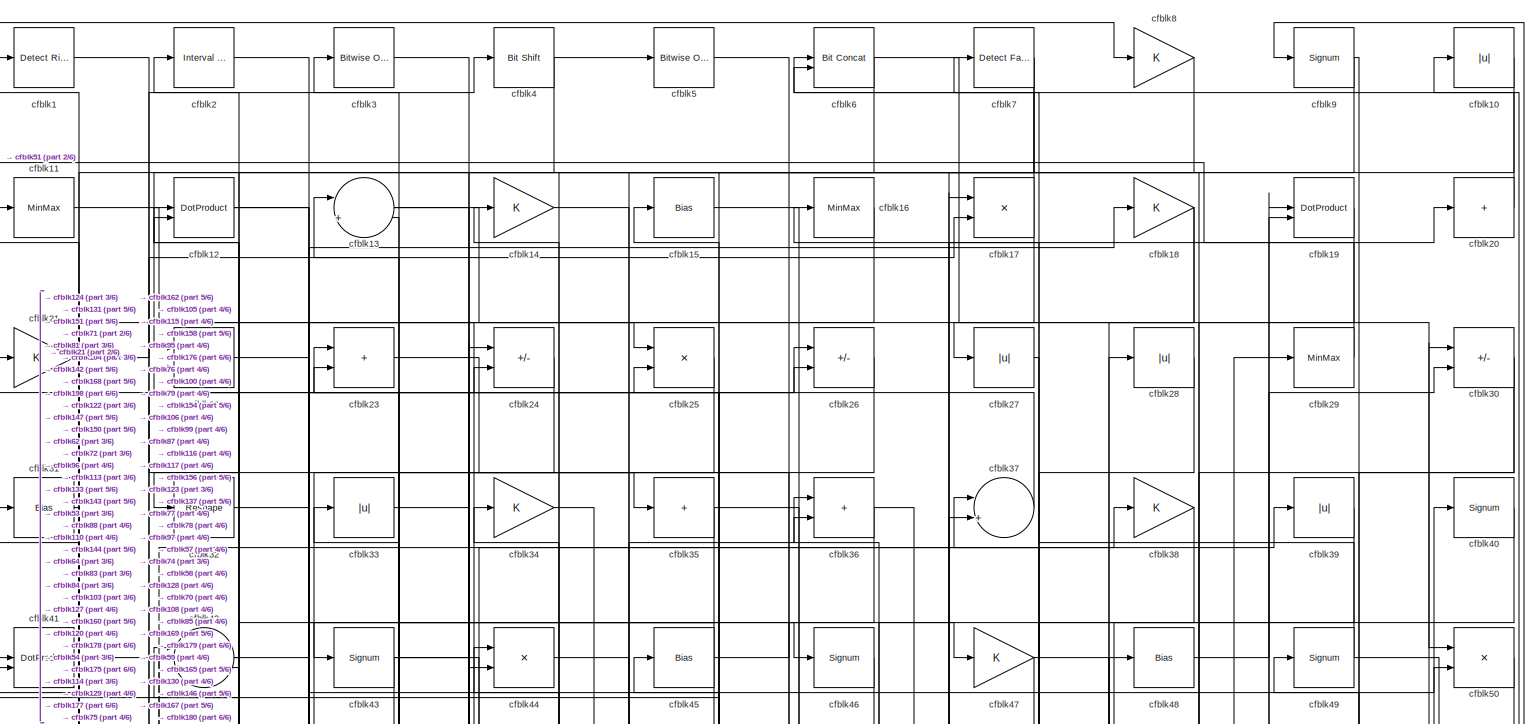
[diagram: root canvas - part 1/6, full width, top band]
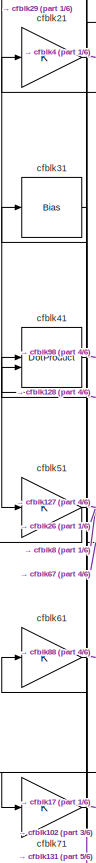
[diagram: root canvas - part 2/6, top left region]
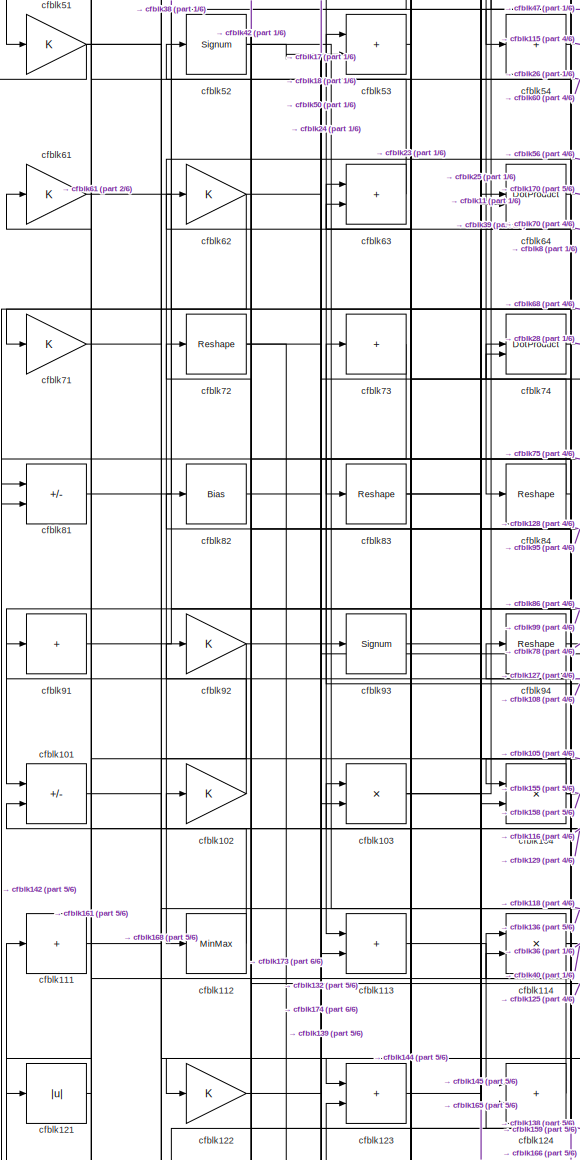
[diagram: root canvas - part 3/6, middle left region]
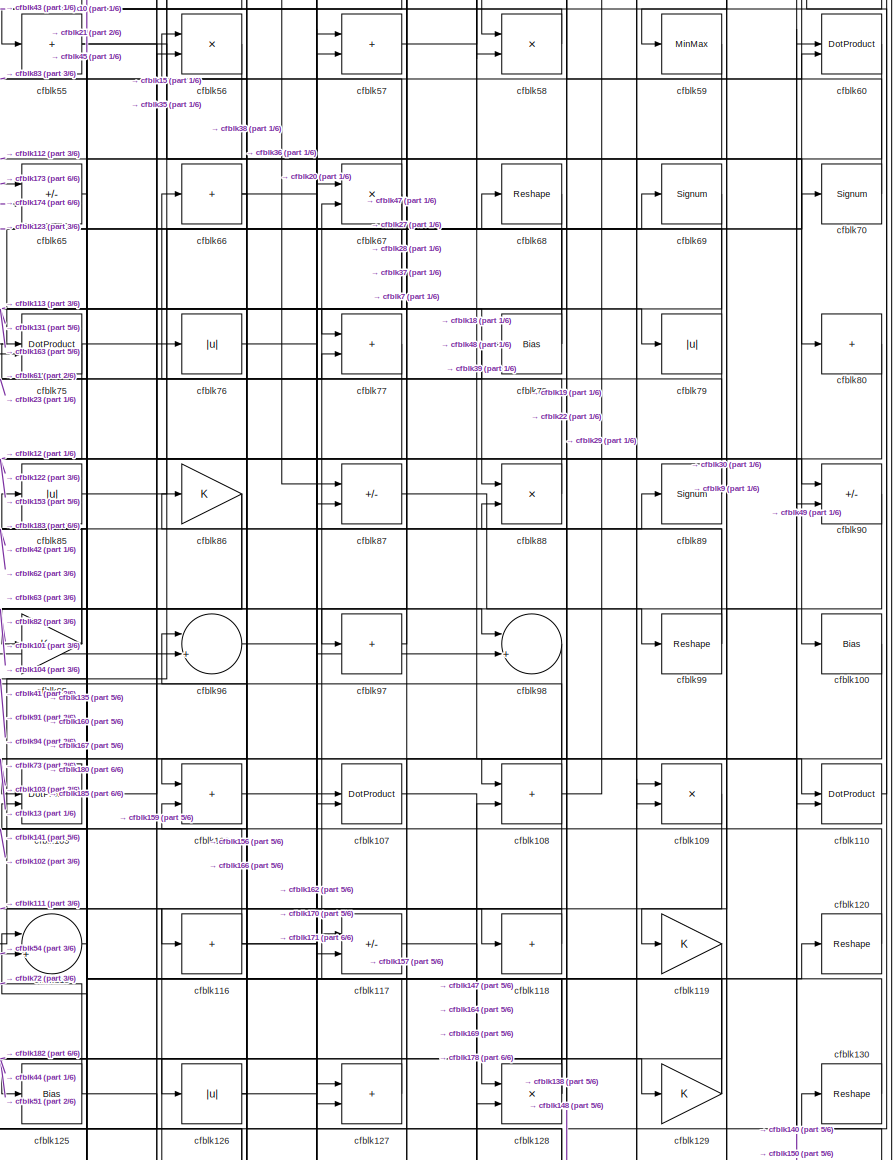
[diagram: root canvas - part 4/6, middle right region]
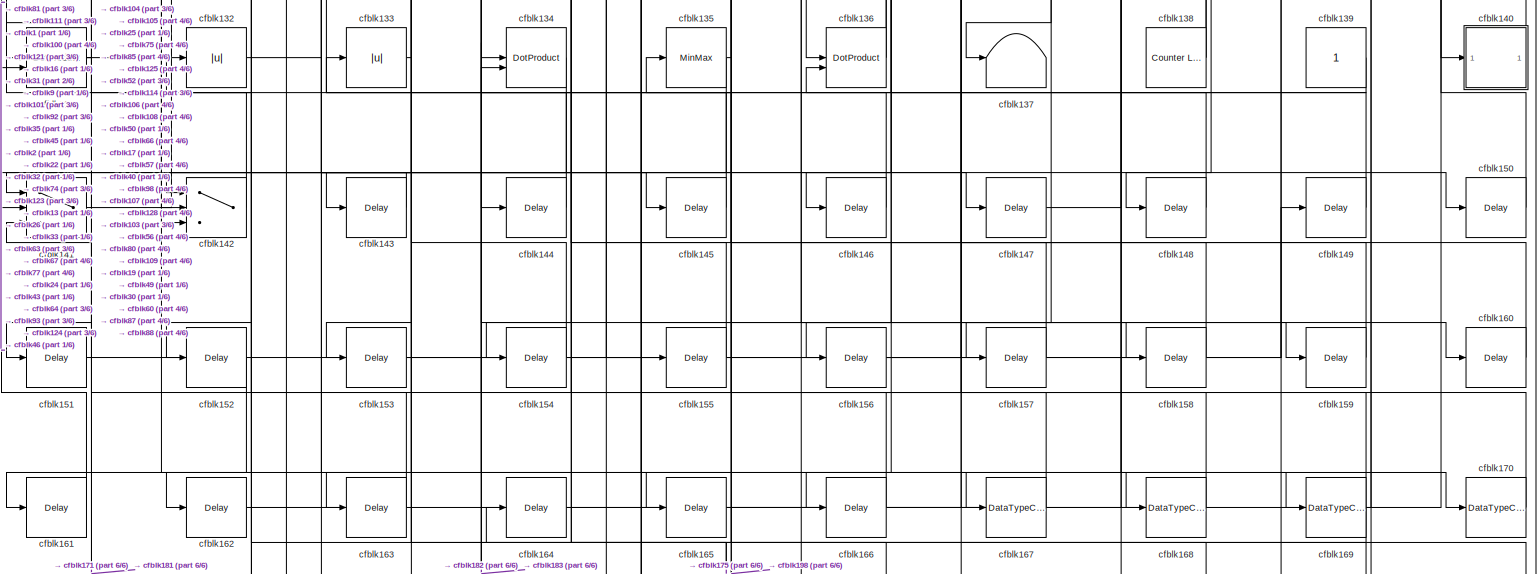
[diagram: root canvas - part 5/6, full width, bottom band]
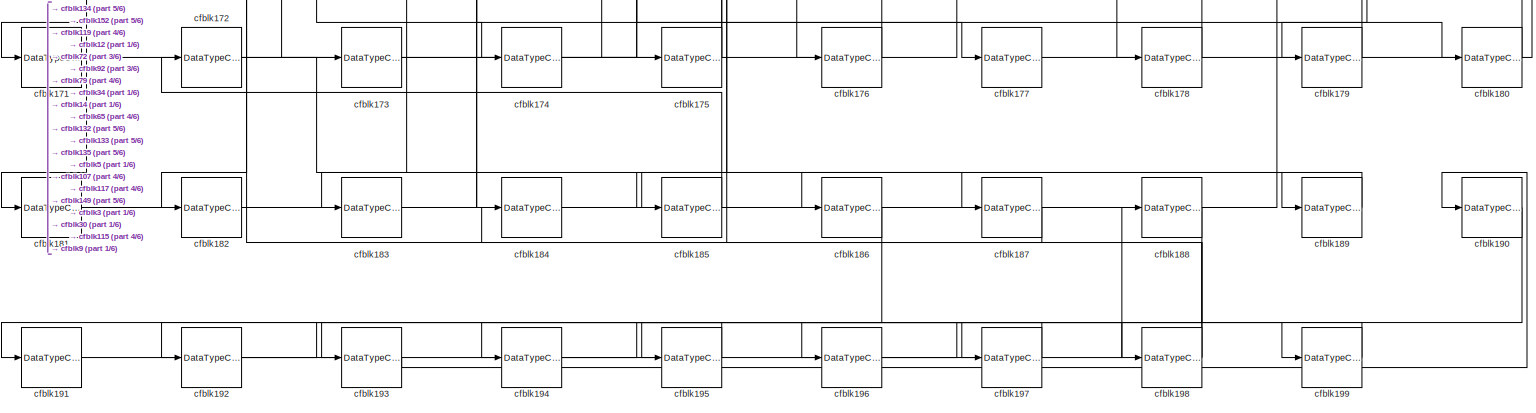
[diagram: root canvas - part 6/6, full width, bottom band]
MODEL slx_1064f1e2cec7
KIND model
CONFIG AbsTol = auto
CONFIG EnableMultiTasking = off
CONFIG FixedStep = auto
CONFIG MaxStep = auto
CONFIG MinStep = auto
CONFIG RelTol = 1e-3
CONFIG SampleTimeConstraint = Unconstrained
CONFIG SolverName = VariableStepAuto
CONFIG StartTime = 0.0
CONFIG StopTime = 10.0
BLOCK [Reference] cfblk1  REF=hdlsllib/Logic and Bit
Operations/Detect Rise
Positive
  SourceBlock = hdlsllib/Logic and Bit\nOperations/Detect Rise\nPositive
  SourceType = Detect Rise Positive
BLOCK [Abs] cfblk10
  SaturateOnIntegerOverflow = off
BLOCK [Bias] cfblk100
  Bias = 0.0
  SaturateOnIntegerOverflow = off
BLOCK [Sum] cfblk101
  IconShape = rectangular
  Inputs = +-
BLOCK [Gain] cfblk102
BLOCK [Product] cfblk103
  Inputs = */
  RndMeth = Zero
  SaturateOnIntegerOverflow = on
BLOCK [Product] cfblk104
  Inputs = */
  RndMeth = Zero
  SaturateOnIntegerOverflow = on
BLOCK [DotProduct] cfblk105
  OutDataTypeStr = Inherit: Inherit via internal rule
BLOCK [Sum] cfblk106
  IconShape = rectangular
BLOCK [DotProduct] cfblk107
  OutDataTypeStr = Inherit: Inherit via internal rule
BLOCK [Sum] cfblk108
  IconShape = rectangular
BLOCK [Product] cfblk109
  Inputs = */
  RndMeth = Zero
  SaturateOnIntegerOverflow = on
BLOCK [MinMax] cfblk11
BLOCK [DotProduct] cfblk110
  OutDataTypeStr = Inherit: Inherit via internal rule
BLOCK [Sum] cfblk111
  IconShape = rectangular
  Inputs = +
BLOCK [MinMax] cfblk112
BLOCK [Sum] cfblk113
  IconShape = rectangular
BLOCK [Product] cfblk114
  Inputs = */
  RndMeth = Zero
  SaturateOnIntegerOverflow = on
BLOCK [Sum] cfblk115
  Inputs = |++
BLOCK [Sum] cfblk116
  IconShape = rectangular
  Inputs = +
BLOCK [Sum] cfblk117
  IconShape = rectangular
  Inputs = +-
BLOCK [Sum] cfblk118
  IconShape = rectangular
  Inputs = +
BLOCK [Gain] cfblk119
BLOCK [DotProduct] cfblk12
  OutDataTypeStr = Inherit: Inherit via internal rule
BLOCK [Reshape] cfblk120
BLOCK [Abs] cfblk121
  SaturateOnIntegerOverflow = off
BLOCK [Gain] cfblk122
BLOCK [Sum] cfblk123
  IconShape = rectangular
BLOCK [Sum] cfblk124
  IconShape = rectangular
BLOCK [Bias] cfblk125
  Bias = 0.0
  SaturateOnIntegerOverflow = off
BLOCK [Abs] cfblk126
  SaturateOnIntegerOverflow = off
BLOCK [Sum] cfblk127
  IconShape = rectangular
BLOCK [Product] cfblk128
  Inputs = */
  RndMeth = Zero
  SaturateOnIntegerOverflow = on
BLOCK [Gain] cfblk129
BLOCK [Sum] cfblk13
  Inputs = |++
BLOCK [Reshape] cfblk130
BLOCK [DotProduct] cfblk131
  OutDataTypeStr = Inherit: Inherit via internal rule
BLOCK [Abs] cfblk132
  SaturateOnIntegerOverflow = off
BLOCK [Abs] cfblk133
  SaturateOnIntegerOverflow = off
BLOCK [DotProduct] cfblk134
  OutDataTypeStr = Inherit: Inherit via internal rule
BLOCK [MinMax] cfblk135
BLOCK [DotProduct] cfblk136
  OutDataTypeStr = Inherit: Inherit via internal rule
BLOCK [Terminator] cfblk137
BLOCK [Reference] cfblk138  REF=hdlsllib/Sources/Counter
Limited
  SourceBlock = hdlsllib/Sources/Counter\nLimited
  SourceType = Counter Limited
BLOCK [Constant] cfblk139
  SampleTime = -1
BLOCK [Gain] cfblk14
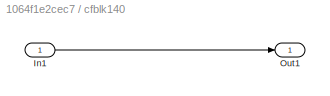
BLOCK [SubSystem] cfblk140
  LibrarySourceBlock = hdlsllib/Ports &\nSubsystems/Subsystem
BLOCK [Inport] cfblk140/In1
BLOCK [Outport] cfblk140/Out1
BLOCK [Switch] cfblk141
  InputSameDT = off
  SaturateOnIntegerOverflow = off
BLOCK [Switch] cfblk142
  InputSameDT = off
  SaturateOnIntegerOverflow = off
BLOCK [Delay] cfblk143
  InputPortMap = u0
  SampleTime = 1
BLOCK [Delay] cfblk144
  InputPortMap = u0
  SampleTime = 1
BLOCK [Delay] cfblk145
  InputPortMap = u0
  SampleTime = 1
BLOCK [Delay] cfblk146
  InputPortMap = u0
  SampleTime = 1
BLOCK [Delay] cfblk147
  InputPortMap = u0
  SampleTime = 1
BLOCK [Delay] cfblk148
  InputPortMap = u0
  SampleTime = 1
BLOCK [Delay] cfblk149
  InputPortMap = u0
  SampleTime = 1
BLOCK [Bias] cfblk15
  Bias = 0.0
  SaturateOnIntegerOverflow = off
BLOCK [Delay] cfblk150
  InputPortMap = u0
  SampleTime = 1
BLOCK [Delay] cfblk151
  InputPortMap = u0
  SampleTime = 1
BLOCK [Delay] cfblk152
  InputPortMap = u0
  SampleTime = 1
BLOCK [Delay] cfblk153
  InputPortMap = u0
  SampleTime = 1
BLOCK [Delay] cfblk154
  InputPortMap = u0
  SampleTime = 1
BLOCK [Delay] cfblk155
  InputPortMap = u0
  SampleTime = 1
BLOCK [Delay] cfblk156
  InputPortMap = u0
  SampleTime = 1
BLOCK [Delay] cfblk157
  InputPortMap = u0
  SampleTime = 1
BLOCK [Delay] cfblk158
  InputPortMap = u0
  SampleTime = 1
BLOCK [Delay] cfblk159
  InputPortMap = u0
  SampleTime = 1
BLOCK [MinMax] cfblk16
BLOCK [Delay] cfblk160
  InputPortMap = u0
  SampleTime = 1
BLOCK [Delay] cfblk161
  InputPortMap = u0
  SampleTime = 1
BLOCK [Delay] cfblk162
  InputPortMap = u0
  SampleTime = 1
BLOCK [Delay] cfblk163
  InputPortMap = u0
  SampleTime = 1
BLOCK [Delay] cfblk164
  InputPortMap = u0
  SampleTime = 1
BLOCK [Delay] cfblk165
  InputPortMap = u0
  SampleTime = 1
BLOCK [Delay] cfblk166
  InputPortMap = u0
  SampleTime = 1
BLOCK [DataTypeConversion] cfblk167
  OutDataTypeStr = uint8
  RndMeth = Floor
  SaturateOnIntegerOverflow = off
BLOCK [DataTypeConversion] cfblk168
  OutDataTypeStr = uint8
  RndMeth = Floor
  SaturateOnIntegerOverflow = off
BLOCK [DataTypeConversion] cfblk169
  RndMeth = Floor
  SaturateOnIntegerOverflow = off
BLOCK [Product] cfblk17
  Inputs = */
  RndMeth = Zero
  SaturateOnIntegerOverflow = on
BLOCK [DataTypeConversion] cfblk170
  OutDataTypeStr = uint8
  RndMeth = Floor
  SaturateOnIntegerOverflow = off
BLOCK [DataTypeConversion] cfblk171
  OutDataTypeStr = uint8
  RndMeth = Floor
  SaturateOnIntegerOverflow = off
BLOCK [DataTypeConversion] cfblk172
  RndMeth = Floor
  SaturateOnIntegerOverflow = off
BLOCK [DataTypeConversion] cfblk173
  OutDataTypeStr = uint8
  RndMeth = Floor
  SaturateOnIntegerOverflow = off
BLOCK [DataTypeConversion] cfblk174
  OutDataTypeStr = uint8
  RndMeth = Floor
  SaturateOnIntegerOverflow = off
BLOCK [DataTypeConversion] cfblk175
  RndMeth = Floor
  SaturateOnIntegerOverflow = off
BLOCK [DataTypeConversion] cfblk176
  OutDataTypeStr = uint8
  RndMeth = Floor
  SaturateOnIntegerOverflow = off
BLOCK [DataTypeConversion] cfblk177
  OutDataTypeStr = uint8
  RndMeth = Floor
  SaturateOnIntegerOverflow = off
BLOCK [DataTypeConversion] cfblk178
  OutDataTypeStr = uint8
  RndMeth = Floor
  SaturateOnIntegerOverflow = off
BLOCK [DataTypeConversion] cfblk179
  OutDataTypeStr = boolean
  RndMeth = Floor
  SaturateOnIntegerOverflow = off
BLOCK [Gain] cfblk18
BLOCK [DataTypeConversion] cfblk180
  OutDataTypeStr = uint8
  RndMeth = Floor
  SaturateOnIntegerOverflow = off
BLOCK [DataTypeConversion] cfblk181
  OutDataTypeStr = uint8
  RndMeth = Floor
  SaturateOnIntegerOverflow = off
BLOCK [DataTypeConversion] cfblk182
  OutDataTypeStr = uint8
  RndMeth = Floor
  SaturateOnIntegerOverflow = off
BLOCK [DataTypeConversion] cfblk183
  OutDataTypeStr = uint8
  RndMeth = Floor
  SaturateOnIntegerOverflow = off
BLOCK [DataTypeConversion] cfblk184
  RndMeth = Floor
  SaturateOnIntegerOverflow = off
BLOCK [DataTypeConversion] cfblk185
  OutDataTypeStr = uint8
  RndMeth = Floor
  SaturateOnIntegerOverflow = off
BLOCK [DataTypeConversion] cfblk186
  RndMeth = Floor
  SaturateOnIntegerOverflow = off
BLOCK [DataTypeConversion] cfblk187
  OutDataTypeStr = uint8
  RndMeth = Floor
  SaturateOnIntegerOverflow = off
BLOCK [DataTypeConversion] cfblk188
  RndMeth = Floor
  SaturateOnIntegerOverflow = off
BLOCK [DataTypeConversion] cfblk189
  OutDataTypeStr = uint8
  RndMeth = Floor
  SaturateOnIntegerOverflow = off
BLOCK [DotProduct] cfblk19
  OutDataTypeStr = Inherit: Inherit via internal rule
BLOCK [DataTypeConversion] cfblk190
  RndMeth = Floor
  SaturateOnIntegerOverflow = off
BLOCK [DataTypeConversion] cfblk191
  OutDataTypeStr = uint8
  RndMeth = Floor
  SaturateOnIntegerOverflow = off
BLOCK [DataTypeConversion] cfblk192
  RndMeth = Floor
  SaturateOnIntegerOverflow = off
BLOCK [DataTypeConversion] cfblk193
  OutDataTypeStr = uint8
  RndMeth = Floor
  SaturateOnIntegerOverflow = off
BLOCK [DataTypeConversion] cfblk194
  RndMeth = Floor
  SaturateOnIntegerOverflow = off
BLOCK [DataTypeConversion] cfblk195
  OutDataTypeStr = uint8
  RndMeth = Floor
  SaturateOnIntegerOverflow = off
BLOCK [DataTypeConversion] cfblk196
  RndMeth = Floor
  SaturateOnIntegerOverflow = off
BLOCK [DataTypeConversion] cfblk197
  OutDataTypeStr = uint8
  RndMeth = Floor
  SaturateOnIntegerOverflow = off
BLOCK [DataTypeConversion] cfblk198
  RndMeth = Floor
  SaturateOnIntegerOverflow = off
BLOCK [DataTypeConversion] cfblk199
  OutDataTypeStr = uint8
  RndMeth = Floor
  SaturateOnIntegerOverflow = off
BLOCK [Reference] cfblk2  REF=hdlsllib/Logic and Bit
Operations/Interval Test
  SourceBlock = hdlsllib/Logic and Bit\nOperations/Interval Test
  SourceType = Interval Test
BLOCK [Sum] cfblk20
  IconShape = rectangular
  Inputs = +
BLOCK [Gain] cfblk21
BLOCK [Sum] cfblk22
  IconShape = rectangular
BLOCK [Sum] cfblk23
  IconShape = rectangular
BLOCK [Sum] cfblk24
  IconShape = rectangular
  Inputs = +-
BLOCK [Product] cfblk25
  Inputs = */
  RndMeth = Zero
  SaturateOnIntegerOverflow = on
BLOCK [Sum] cfblk26
  IconShape = rectangular
  Inputs = +-
BLOCK [Abs] cfblk27
  SaturateOnIntegerOverflow = off
BLOCK [Abs] cfblk28
  SaturateOnIntegerOverflow = off
BLOCK [MinMax] cfblk29
BLOCK [Reference] cfblk3  REF=simulink/Logic and Bit
Operations/Bitwise
Operator
  LibrarySourceBlock = hdlsllib/Logic and Bit\nOperations/Bitwise\nOperator
  SourceBlock = simulink/Logic and Bit\nOperations/Bitwise\nOperator
  SourceType = Bitwise Operator
BLOCK [Sum] cfblk30
  IconShape = rectangular
  Inputs = +-
BLOCK [Bias] cfblk31
  Bias = 0.0
  SaturateOnIntegerOverflow = off
BLOCK [Reshape] cfblk32
BLOCK [Abs] cfblk33
  SaturateOnIntegerOverflow = off
BLOCK [Gain] cfblk34
BLOCK [Sum] cfblk35
  IconShape = rectangular
  Inputs = +
BLOCK [Sum] cfblk36
  IconShape = rectangular
BLOCK [Sum] cfblk37
  Inputs = |++
BLOCK [Gain] cfblk38
BLOCK [Abs] cfblk39
  SaturateOnIntegerOverflow = off
BLOCK [Reference] cfblk4  REF=hdlsllib/Logic and Bit
Operations/Bit Shift
  SourceBlock = hdlsllib/Logic and Bit\nOperations/Bit Shift
  SourceType = Bit Shift
BLOCK [Signum] cfblk40
BLOCK [DotProduct] cfblk41
  OutDataTypeStr = Inherit: Inherit via internal rule
BLOCK [Sum] cfblk42
  Inputs = |++
BLOCK [Signum] cfblk43
BLOCK [Product] cfblk44
  Inputs = */
  RndMeth = Zero
  SaturateOnIntegerOverflow = on
BLOCK [Bias] cfblk45
  Bias = 0.0
  SaturateOnIntegerOverflow = off
BLOCK [Signum] cfblk46
BLOCK [Gain] cfblk47
BLOCK [Bias] cfblk48
  Bias = 0.0
  SaturateOnIntegerOverflow = off
BLOCK [Signum] cfblk49
BLOCK [Reference] cfblk5  REF=simulink/Logic and Bit
Operations/Bitwise
Operator
  LibrarySourceBlock = hdlsllib/Logic and Bit\nOperations/Bitwise\nOperator
  SourceBlock = simulink/Logic and Bit\nOperations/Bitwise\nOperator
  SourceType = Bitwise Operator
BLOCK [Product] cfblk50
  Inputs = */
  RndMeth = Zero
  SaturateOnIntegerOverflow = on
BLOCK [Gain] cfblk51
BLOCK [Signum] cfblk52
BLOCK [Sum] cfblk53
  IconShape = rectangular
BLOCK [Sum] cfblk54
  IconShape = rectangular
  Inputs = +
BLOCK [Sum] cfblk55
  IconShape = rectangular
  Inputs = +
BLOCK [Product] cfblk56
  Inputs = */
  RndMeth = Zero
  SaturateOnIntegerOverflow = on
BLOCK [Sum] cfblk57
  IconShape = rectangular
BLOCK [Product] cfblk58
  Inputs = */
  RndMeth = Zero
  SaturateOnIntegerOverflow = on
BLOCK [MinMax] cfblk59
BLOCK [Reference] cfblk6  REF=hdlsllib/Logic and Bit
Operations/Bit Concat
  SourceBlock = hdlsllib/Logic and Bit\nOperations/Bit Concat
  SourceType = Bit Concat
BLOCK [DotProduct] cfblk60
  OutDataTypeStr = Inherit: Inherit via internal rule
BLOCK [Gain] cfblk61
BLOCK [Gain] cfblk62
BLOCK [Sum] cfblk63
  IconShape = rectangular
BLOCK [DotProduct] cfblk64
  OutDataTypeStr = Inherit: Inherit via internal rule
BLOCK [Sum] cfblk65
  IconShape = rectangular
  Inputs = +-
BLOCK [Sum] cfblk66
  IconShape = rectangular
  Inputs = +
BLOCK [Product] cfblk67
  Inputs = */
  RndMeth = Zero
  SaturateOnIntegerOverflow = on
BLOCK [Reshape] cfblk68
BLOCK [Signum] cfblk69
BLOCK [Reference] cfblk7  REF=hdlsllib/Logic and Bit
Operations/Detect Fall
Negative
  SourceBlock = hdlsllib/Logic and Bit\nOperations/Detect Fall\nNegative
  SourceType = Detect Fall Negative
BLOCK [Signum] cfblk70
BLOCK [Gain] cfblk71
BLOCK [Reshape] cfblk72
BLOCK [Sum] cfblk73
  IconShape = rectangular
  Inputs = +
BLOCK [DotProduct] cfblk74
  OutDataTypeStr = Inherit: Inherit via internal rule
BLOCK [DotProduct] cfblk75
  OutDataTypeStr = Inherit: Inherit via internal rule
BLOCK [Abs] cfblk76
  SaturateOnIntegerOverflow = off
BLOCK [Sum] cfblk77
  IconShape = rectangular
BLOCK [Bias] cfblk78
  Bias = 0.0
  SaturateOnIntegerOverflow = off
BLOCK [Abs] cfblk79
  SaturateOnIntegerOverflow = off
BLOCK [Gain] cfblk8
BLOCK [Sum] cfblk80
  IconShape = rectangular
  Inputs = +
BLOCK [Sum] cfblk81
  IconShape = rectangular
  Inputs = +-
BLOCK [Bias] cfblk82
  Bias = 0.0
  SaturateOnIntegerOverflow = off
BLOCK [Reshape] cfblk83
BLOCK [Reshape] cfblk84
BLOCK [Abs] cfblk85
  SaturateOnIntegerOverflow = off
BLOCK [Gain] cfblk86
BLOCK [Sum] cfblk87
  IconShape = rectangular
  Inputs = +-
BLOCK [Product] cfblk88
  Inputs = */
  RndMeth = Zero
  SaturateOnIntegerOverflow = on
BLOCK [Signum] cfblk89
BLOCK [Signum] cfblk9
BLOCK [Sum] cfblk90
  IconShape = rectangular
  Inputs = +-
BLOCK [Sum] cfblk91
  IconShape = rectangular
  Inputs = +
BLOCK [Gain] cfblk92
BLOCK [Signum] cfblk93
BLOCK [Reshape] cfblk94
BLOCK [Gain] cfblk95
BLOCK [Sum] cfblk96
  Inputs = |++
BLOCK [Sum] cfblk97
  IconShape = rectangular
  Inputs = +
BLOCK [Sum] cfblk98
  Inputs = |++
BLOCK [Reshape] cfblk99
LINE cfblk100:1 -> cfblk141:1
LINE cfblk101:1 -> cfblk168:1
LINE cfblk102:1 -> cfblk61:1
NET cfblk103:1 -> cfblk105:1, cfblk39:1
NET cfblk104:1 -> cfblk155:1, cfblk158:1, cfblk42:2
NET cfblk105:1 -> cfblk45:1, cfblk77:2
LINE cfblk106:1 -> cfblk57:1
LINE cfblk107:1 -> cfblk169:1
NET cfblk108:1 -> cfblk166:1, cfblk29:1, cfblk73:1
LINE cfblk109:1 -> cfblk116:1
LINE cfblk10:1 -> cfblk95:1
LINE cfblk110:1 -> cfblk10:1
LINE cfblk111:1 -> cfblk118:1
LINE cfblk112:1 -> cfblk91:1
LINE cfblk113:1 -> cfblk124:1
NET cfblk114:1 -> cfblk36:2, cfblk40:1
LINE cfblk115:1 -> cfblk15:1
NET cfblk116:1 -> cfblk101:2, cfblk37:2, cfblk69:1
LINE cfblk117:1 -> cfblk178:1
LINE cfblk118:1 -> cfblk117:1
LINE cfblk119:1 -> cfblk182:1
LINE cfblk11:1 -> cfblk84:1
LINE cfblk120:1 -> cfblk44:1
LINE cfblk121:1 -> cfblk161:1
LINE cfblk122:1 -> cfblk18:1
LINE cfblk123:1 -> cfblk70:1
LINE cfblk124:1 -> cfblk11:1
NET cfblk125:1 -> cfblk159:1, cfblk72:1
NET cfblk126:1 -> cfblk120:1, cfblk86:1
LINE cfblk127:1 -> cfblk94:1
NET cfblk128:1 -> cfblk21:1, cfblk41:1, cfblk82:1
NET cfblk129:1 -> cfblk102:1, cfblk96:1
NET cfblk12:1 -> cfblk46:1, cfblk87:2
LINE cfblk130:1 -> cfblk67:2
NET cfblk131:1 -> cfblk145:1, cfblk31:1
LINE cfblk132:1 -> cfblk74:1
LINE cfblk133:1 -> cfblk33:1
LINE cfblk134:1 -> cfblk181:1
NET cfblk135:1 -> cfblk152:1, cfblk75:1
NET cfblk136:1 -> cfblk114:1, cfblk92:1
NET cfblk138:1 -> cfblk103:1, cfblk56:1
LINE cfblk139:1 -> cfblk123:2
NET cfblk13:1 -> cfblk110:2, cfblk25:1
LINE cfblk140/In1:1 -> cfblk140/Out1:1
LINE cfblk140:1 -> cfblk88:2
LINE cfblk141:1 -> cfblk56:2
LINE cfblk142:1 -> cfblk111:1
LINE cfblk143:1 -> cfblk141:2
LINE cfblk144:1 -> cfblk63:2
LINE cfblk145:1 -> cfblk64:1
LINE cfblk146:1 -> cfblk1:1
LINE cfblk147:1 -> cfblk108:2
LINE cfblk148:1 -> cfblk106:2
LINE cfblk149:1 -> cfblk136:2
LINE cfblk14:1 -> cfblk177:1
LINE cfblk150:1 -> cfblk60:1
LINE cfblk151:1 -> cfblk19:1
LINE cfblk152:1 -> cfblk171:1
LINE cfblk153:1 -> cfblk109:1
LINE cfblk154:1 -> cfblk13:1
LINE cfblk155:1 -> cfblk124:2
LINE cfblk156:1 -> cfblk17:1
LINE cfblk157:1 -> cfblk67:1
LINE cfblk158:1 -> cfblk25:2
LINE cfblk159:1 -> cfblk74:2
LINE cfblk15:1 -> cfblk79:1
LINE cfblk160:1 -> cfblk105:2
LINE cfblk161:1 -> cfblk81:1
LINE cfblk162:1 -> cfblk57:2
LINE cfblk163:1 -> cfblk141:3
LINE cfblk164:1 -> cfblk128:2
LINE cfblk165:1 -> cfblk30:1
LINE cfblk166:1 -> cfblk114:2
LINE cfblk167:1 -> cfblk85:1
LINE cfblk168:1 -> cfblk2:1
NET cfblk169:1 -> cfblk164:1, cfblk24:1, cfblk49:1
LINE cfblk16:1 -> cfblk131:1
LINE cfblk170:1 -> cfblk107:1
LINE cfblk171:1 -> cfblk107:2
LINE cfblk172:1 -> cfblk187:1
LINE cfblk173:1 -> cfblk65:1
LINE cfblk174:1 -> cfblk65:2
NET cfblk175:1 -> cfblk132:1, cfblk133:1
LINE cfblk176:1 -> cfblk34:1
LINE cfblk177:1 -> cfblk9:1
LINE cfblk178:1 -> cfblk14:1
LINE cfblk179:1 -> cfblk3:1
NET cfblk17:1 -> cfblk103:2, cfblk6:1
LINE cfblk180:1 -> cfblk115:1
LINE cfblk181:1 -> cfblk149:1
LINE cfblk182:1 -> cfblk134:1
LINE cfblk183:1 -> cfblk134:2
LINE cfblk184:1 -> cfblk189:1
LINE cfblk185:1 -> cfblk172:1
LINE cfblk186:1 -> cfblk191:1
LINE cfblk187:1 -> cfblk184:1
LINE cfblk188:1 -> cfblk193:1
LINE cfblk189:1 -> cfblk186:1
NET cfblk18:1 -> cfblk27:1, cfblk58:2
LINE cfblk190:1 -> cfblk195:1
LINE cfblk191:1 -> cfblk188:1
LINE cfblk192:1 -> cfblk197:1
LINE cfblk193:1 -> cfblk190:1
LINE cfblk194:1 -> cfblk199:1
LINE cfblk195:1 -> cfblk192:1
LINE cfblk196:1 -> cfblk198:1
LINE cfblk197:1 -> cfblk194:1
NET cfblk198:1 -> cfblk12:2, cfblk135:1
LINE cfblk199:1 -> cfblk196:1
LINE cfblk19:1 -> cfblk108:1
LINE cfblk1:1 -> cfblk35:1
LINE cfblk20:1 -> cfblk6:2
LINE cfblk21:1 -> cfblk4:1
LINE cfblk22:1 -> cfblk150:1
LINE cfblk23:1 -> cfblk76:1
LINE cfblk24:1 -> cfblk113:1
LINE cfblk25:1 -> cfblk64:2
LINE cfblk26:1 -> cfblk143:1
LINE cfblk27:1 -> cfblk77:1
LINE cfblk28:1 -> cfblk97:1
LINE cfblk29:1 -> cfblk51:1
LINE cfblk2:1 -> cfblk167:1
NET cfblk30:1 -> cfblk128:1, cfblk179:1
LINE cfblk31:1 -> cfblk71:1
LINE cfblk32:1 -> cfblk147:1
LINE cfblk33:1 -> cfblk144:1
LINE cfblk34:1 -> cfblk175:1
NET cfblk35:1 -> cfblk100:1, cfblk142:1
NET cfblk36:1 -> cfblk83:1, cfblk87:1
LINE cfblk37:1 -> cfblk13:2
LINE cfblk38:1 -> cfblk106:1
LINE cfblk39:1 -> cfblk58:1
LINE cfblk3:1 -> cfblk180:1
LINE cfblk40:1 -> cfblk137:1
LINE cfblk41:1 -> cfblk98:1
NET cfblk42:1 -> cfblk12:1, cfblk96:2
NET cfblk43:1 -> cfblk127:1, cfblk142:2, cfblk160:1
LINE cfblk44:1 -> cfblk129:1
NET cfblk45:1 -> cfblk162:1, cfblk43:1, cfblk47:1
LINE cfblk46:1 -> cfblk154:1
NET cfblk47:1 -> cfblk110:1, cfblk123:1
LINE cfblk48:1 -> cfblk30:2
NET cfblk49:1 -> cfblk130:1, cfblk16:1
NET cfblk4:1 -> cfblk44:2, cfblk5:1
LINE cfblk50:1 -> cfblk146:1
NET cfblk51:1 -> cfblk127:2, cfblk26:2, cfblk8:1
NET cfblk52:1 -> cfblk136:1, cfblk53:2
LINE cfblk53:1 -> cfblk23:2
LINE cfblk54:1 -> cfblk115:2
NET cfblk55:1 -> cfblk80:1, cfblk90:1
LINE cfblk56:1 -> cfblk112:1
LINE cfblk57:1 -> cfblk48:1
LINE cfblk58:1 -> cfblk55:1
LINE cfblk59:1 -> cfblk125:1
LINE cfblk5:1 -> cfblk176:1
LINE cfblk60:1 -> cfblk109:2
LINE cfblk61:1 -> cfblk88:1
NET cfblk62:1 -> cfblk121:1, cfblk50:2
LINE cfblk63:1 -> cfblk52:1
LINE cfblk64:1 -> cfblk170:1
LINE cfblk65:1 -> cfblk185:1
NET cfblk66:1 -> cfblk156:1, cfblk98:2
NET cfblk67:1 -> cfblk131:2, cfblk163:1, cfblk41:2
LINE cfblk68:1 -> cfblk113:2
LINE cfblk69:1 -> cfblk126:1
NET cfblk6:1 -> cfblk32:1, cfblk50:1
LINE cfblk70:1 -> cfblk22:1
LINE cfblk71:1 -> cfblk17:2
NET cfblk72:1 -> cfblk173:1, cfblk24:2
LINE cfblk73:1 -> cfblk81:2
LINE cfblk74:1 -> cfblk28:1
NET cfblk75:1 -> cfblk122:1, cfblk90:2
LINE cfblk76:1 -> cfblk20:1
LINE cfblk77:1 -> cfblk153:1
NET cfblk78:1 -> cfblk22:2, cfblk7:1
NET cfblk79:1 -> cfblk183:1, cfblk68:1
NET cfblk7:1 -> cfblk117:2, cfblk75:2
LINE cfblk80:1 -> cfblk148:1
LINE cfblk81:1 -> cfblk38:1
LINE cfblk82:1 -> cfblk93:1
NET cfblk83:1 -> cfblk26:1, cfblk60:2
NET cfblk84:1 -> cfblk104:1, cfblk53:1
LINE cfblk85:1 -> cfblk19:2
NET cfblk86:1 -> cfblk101:1, cfblk104:2
LINE cfblk87:1 -> cfblk140:1
LINE cfblk88:1 -> cfblk23:1
LINE cfblk89:1 -> cfblk66:1
LINE cfblk8:1 -> cfblk54:1
LINE cfblk90:1 -> cfblk119:1
LINE cfblk91:1 -> cfblk99:1
NET cfblk92:1 -> cfblk142:3, cfblk174:1
LINE cfblk93:1 -> cfblk165:1
LINE cfblk94:1 -> cfblk78:1
NET cfblk95:1 -> cfblk42:1, cfblk62:1
LINE cfblk96:1 -> cfblk89:1
LINE cfblk97:1 -> cfblk37:1
LINE cfblk98:1 -> cfblk157:1
NET cfblk99:1 -> cfblk36:1, cfblk63:1
NET cfblk9:1 -> cfblk151:1, cfblk59:1
note: NET lines group one-source signal fan-out (src -> all destinations, sorted); 1:1 wires keep LINE
